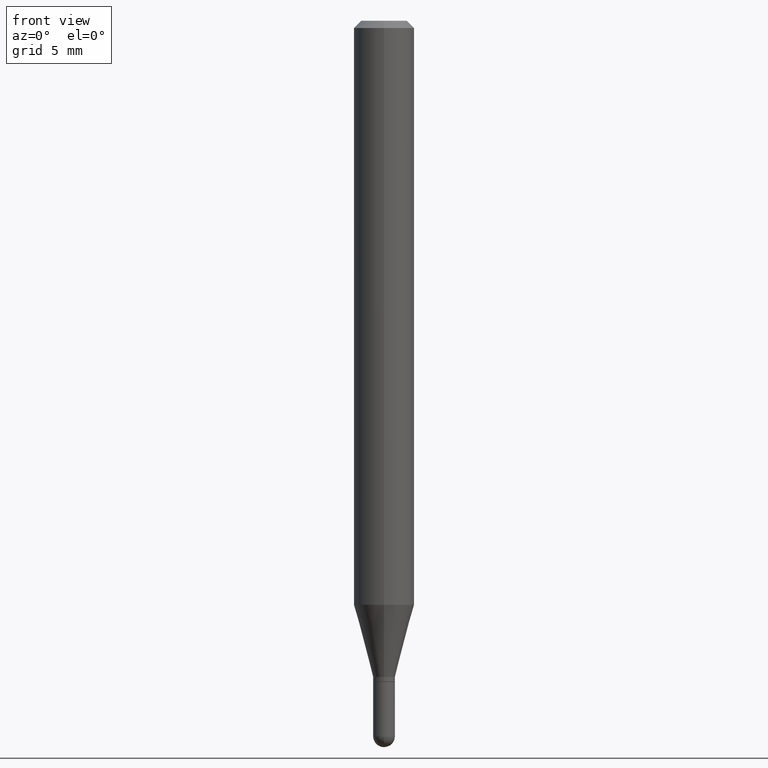
[diagram: clean part render]
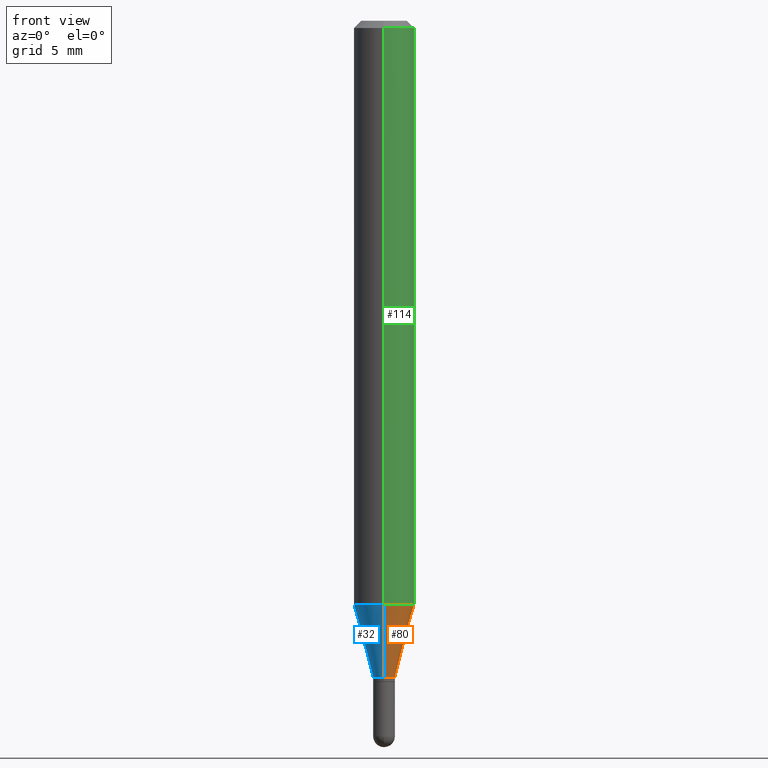
[diagram: same view with three faces highlighted in distinct colors, each labeled with its STEP entity id]
A machine part, front view with three faces highlighted in distinct colors.
Their STEP definitions:

[orange] entity #80 — the highlighted conical surface has half-angle 15 deg.
#6 = DIRECTION ( 'NONE',  ( -6.982962677686265922E-15, -1.000000000000000000, 4.370956789862821150E-15 ) ) ;
#9 = ORIENTED_EDGE ( 'NONE', *, *, #252, .T. ) ;
#54 = VERTEX_POINT ( 'NONE', #355 ) ;
#61 = CARTESIAN_POINT ( 'NONE',  ( -1.571166602479072427E-16, -0.02250000000000464823, -1.355000000000000204 ) ) ;
#67 = LINE ( 'NONE', #215, #127 ) ;
#80 = ADVANCED_FACE ( 'NONE', ( #236 ), #354, .T. ) ;
#87 = VERTEX_POINT ( 'NONE', #310 ) ;
#124 = DIRECTION ( 'NONE',  ( -2.445456213792252692E-29, 3.491499371866469900E-15, 1.000000000000000000 ) ) ;
#127 = VECTOR ( 'NONE', #181, 39.37007874015748143 ) ;
#128 = DIRECTION ( 'NONE',  ( -2.445456213792252692E-29, 3.491499371866469900E-15, 1.000000000000000000 ) ) ;
#169 = CARTESIAN_POINT ( 'NONE',  ( 3.313593169688502926E-29, -4.730981648879067221E-15, -1.355000000000000204 ) ) ;
#175 = LINE ( 'NONE', #183, #379 ) ;
#181 = DIRECTION ( 'NONE',  ( 1.839019923739599921E-15, 0.2588190451025249028, 0.9659258262890670910 ) ) ;
#183 = CARTESIAN_POINT ( 'NONE',  ( -1.571166602479072427E-16, -0.02250000000000464823, -1.355000000000000204 ) ) ;
#193 = CIRCLE ( 'NONE', #233, 0.02249999999999991937 ) ;
#215 = CARTESIAN_POINT ( 'NONE',  ( 1.598721155460550764E-16, 0.02249999999999518704, -1.355000000000000204 ) ) ;
#233 = AXIS2_PLACEMENT_3D ( 'NONE', #169, #128, #439 ) ;
#236 = FACE_OUTER_BOUND ( 'NONE', #436, .T. ) ;
#252 = EDGE_CURVE ( 'NONE', #460, #54, #193, .T. ) ;
#254 = DIRECTION ( 'NONE',  ( -1.807323732225329745E-15, -0.2588190451025181305, 0.9659258262890689783 ) ) ;
#277 = CARTESIAN_POINT ( 'NONE',  ( 3.313593169688502926E-29, -4.730981648879067221E-15, -1.355000000000000204 ) ) ;
#278 = VERTEX_POINT ( 'NONE', #327 ) ;
#284 = ORIENTED_EDGE ( 'NONE', *, *, #484, .T. ) ;
#303 = EDGE_CURVE ( 'NONE', #278, #87, #363, .T. ) ;
#310 = CARTESIAN_POINT ( 'NONE',  ( 4.440892098500918040E-16, 0.06249999999999577421, -1.205717967697245596 ) ) ;
#327 = CARTESIAN_POINT ( 'NONE',  ( -4.364351673553622350E-16, -0.06250000000000421885, -1.205717967697244930 ) ) ;
#332 = AXIS2_PLACEMENT_3D ( 'NONE', #333, #124, #6 ) ;
#333 = CARTESIAN_POINT ( 'NONE',  ( 2.948530496186194822E-29, -4.209763526863048217E-15, -1.205717967697245152 ) ) ;
#338 = AXIS2_PLACEMENT_3D ( 'NONE', #277, #352, #434 ) ;
#352 = DIRECTION ( 'NONE',  ( -2.445456213792252692E-29, 3.491499371866469900E-15, 1.000000000000000000 ) ) ;
#354 = CONICAL_SURFACE ( 'NONE', #338, 0.02249999999999991937, 0.2617993877991502405 ) ;
#355 = CARTESIAN_POINT ( 'NONE',  ( 3.019806626980737607E-16, 0.02249999999999519398, -1.355000000000000204 ) ) ;
#363 = CIRCLE ( 'NONE', #332, 0.06250000000000000000 ) ;
#379 = VECTOR ( 'NONE', #254, 39.37007874015748143 ) ;
#396 = EDGE_CURVE ( 'NONE', #460, #278, #175, .T. ) ;
#434 = DIRECTION ( 'NONE',  ( -6.982962677686265133E-15, -1.000000000000000000, 0.000000000000000000 ) ) ;
#436 = EDGE_LOOP ( 'NONE', ( #9, #284, #499, #490 ) ) ;
#439 = DIRECTION ( 'NONE',  ( -6.982962677686265133E-15, -1.000000000000000000, 0.000000000000000000 ) ) ;
#460 = VERTEX_POINT ( 'NONE', #61 ) ;
#484 = EDGE_CURVE ( 'NONE', #54, #87, #67, .T. ) ;
#490 = ORIENTED_EDGE ( 'NONE', *, *, #396, .F. ) ;
#499 = ORIENTED_EDGE ( 'NONE', *, *, #303, .F. ) ;

[blue] entity #32 — the highlighted conical surface has half-angle 15 deg.
#32 = ADVANCED_FACE ( 'NONE', ( #313 ), #501, .T. ) ;
#54 = VERTEX_POINT ( 'NONE', #355 ) ;
#58 = DIRECTION ( 'NONE',  ( -6.982962677686265133E-15, -1.000000000000000000, 0.000000000000000000 ) ) ;
#61 = CARTESIAN_POINT ( 'NONE',  ( -1.571166602479072427E-16, -0.02250000000000464823, -1.355000000000000204 ) ) ;
#67 = LINE ( 'NONE', #215, #127 ) ;
#73 = DIRECTION ( 'NONE',  ( -2.445456213792252692E-29, 3.491499371866469900E-15, 1.000000000000000000 ) ) ;
#87 = VERTEX_POINT ( 'NONE', #310 ) ;
#88 = CARTESIAN_POINT ( 'NONE',  ( 3.313593169688502926E-29, -4.730981648879067221E-15, -1.355000000000000204 ) ) ;
#103 = AXIS2_PLACEMENT_3D ( 'NONE', #88, #289, #58 ) ;
#120 = CARTESIAN_POINT ( 'NONE',  ( 3.313593169688502926E-29, -4.730981648879067221E-15, -1.355000000000000204 ) ) ;
#127 = VECTOR ( 'NONE', #181, 39.37007874015748143 ) ;
#151 = DIRECTION ( 'NONE',  ( -6.982962677686265133E-15, -1.000000000000000000, 0.000000000000000000 ) ) ;
#159 = ORIENTED_EDGE ( 'NONE', *, *, #396, .T. ) ;
#175 = LINE ( 'NONE', #183, #379 ) ;
#181 = DIRECTION ( 'NONE',  ( 1.839019923739599921E-15, 0.2588190451025249028, 0.9659258262890670910 ) ) ;
#183 = CARTESIAN_POINT ( 'NONE',  ( -1.571166602479072427E-16, -0.02250000000000464823, -1.355000000000000204 ) ) ;
#197 = EDGE_CURVE ( 'NONE', #87, #278, #451, .T. ) ;
#203 = CIRCLE ( 'NONE', #103, 0.02249999999999991937 ) ;
#206 = ORIENTED_EDGE ( 'NONE', *, *, #217, .T. ) ;
#215 = CARTESIAN_POINT ( 'NONE',  ( 1.598721155460550764E-16, 0.02249999999999518704, -1.355000000000000204 ) ) ;
#217 = EDGE_CURVE ( 'NONE', #54, #460, #203, .T. ) ;
#225 = AXIS2_PLACEMENT_3D ( 'NONE', #324, #489, #335 ) ;
#254 = DIRECTION ( 'NONE',  ( -1.807323732225329745E-15, -0.2588190451025181305, 0.9659258262890689783 ) ) ;
#278 = VERTEX_POINT ( 'NONE', #327 ) ;
#289 = DIRECTION ( 'NONE',  ( -2.445456213792252692E-29, 3.491499371866469900E-15, 1.000000000000000000 ) ) ;
#290 = EDGE_LOOP ( 'NONE', ( #365, #206, #159, #407 ) ) ;
#310 = CARTESIAN_POINT ( 'NONE',  ( 4.440892098500918040E-16, 0.06249999999999577421, -1.205717967697245596 ) ) ;
#313 = FACE_OUTER_BOUND ( 'NONE', #290, .T. ) ;
#324 = CARTESIAN_POINT ( 'NONE',  ( 2.948530496186194822E-29, -4.209763526863048217E-15, -1.205717967697245152 ) ) ;
#327 = CARTESIAN_POINT ( 'NONE',  ( -4.364351673553622350E-16, -0.06250000000000421885, -1.205717967697244930 ) ) ;
#335 = DIRECTION ( 'NONE',  ( -6.982962677686265922E-15, -1.000000000000000000, 4.370956789862821150E-15 ) ) ;
#355 = CARTESIAN_POINT ( 'NONE',  ( 3.019806626980737607E-16, 0.02249999999999519398, -1.355000000000000204 ) ) ;
#362 = AXIS2_PLACEMENT_3D ( 'NONE', #120, #73, #151 ) ;
#365 = ORIENTED_EDGE ( 'NONE', *, *, #484, .F. ) ;
#379 = VECTOR ( 'NONE', #254, 39.37007874015748143 ) ;
#396 = EDGE_CURVE ( 'NONE', #460, #278, #175, .T. ) ;
#407 = ORIENTED_EDGE ( 'NONE', *, *, #197, .F. ) ;
#451 = CIRCLE ( 'NONE', #225, 0.06250000000000000000 ) ;
#460 = VERTEX_POINT ( 'NONE', #61 ) ;
#484 = EDGE_CURVE ( 'NONE', #54, #87, #67, .T. ) ;
#489 = DIRECTION ( 'NONE',  ( -2.445456213792252692E-29, 3.491499371866469900E-15, 1.000000000000000000 ) ) ;
#501 = CONICAL_SURFACE ( 'NONE', #362, 0.02249999999999991937, 0.2617993877991502405 ) ;

[green] entity #114 — the highlighted cylindrical surface (edge-blend (fillet) strip) has radius 1.5875 mm, axis along (-0, 0, 1).
#6 = DIRECTION ( 'NONE',  ( -6.982962677686265922E-15, -1.000000000000000000, 4.370956789862821150E-15 ) ) ;
#7 = AXIS2_PLACEMENT_3D ( 'NONE', #361, #400, #8 ) ;
#8 = DIRECTION ( 'NONE',  ( -6.982962677686265922E-15, -1.000000000000000000, 3.483106191921935554E-15 ) ) ;
#46 = CARTESIAN_POINT ( 'NONE',  ( 4.440892098500625669E-16, 0.06250000000000000000, -2.182187107416543441E-16 ) ) ;
#63 = DIRECTION ( 'NONE',  ( -2.445456213792252412E-29, 3.491499371866469505E-15, 1.000000000000000000 ) ) ;
#83 = CYLINDRICAL_SURFACE ( 'NONE', #465, 0.06250000000000000000 ) ;
#87 = VERTEX_POINT ( 'NONE', #310 ) ;
#113 = DIRECTION ( 'NONE',  ( -2.445456213792252692E-29, 3.491499371866469900E-15, 1.000000000000000000 ) ) ;
#114 = ADVANCED_FACE ( 'NONE', ( #232 ), #83, .T. ) ;
#123 = ORIENTED_EDGE ( 'NONE', *, *, #303, .T. ) ;
#124 = DIRECTION ( 'NONE',  ( -2.445456213792252692E-29, 3.491499371866469900E-15, 1.000000000000000000 ) ) ;
#129 = EDGE_LOOP ( 'NONE', ( #123, #374, #263, #301 ) ) ;
#156 = CARTESIAN_POINT ( 'NONE',  ( 0.000000000000000000, 0.000000000000000000, 0.000000000000000000 ) ) ;
#172 = LINE ( 'NONE', #46, #312 ) ;
#200 = EDGE_CURVE ( 'NONE', #87, #507, #172, .T. ) ;
#218 = LINE ( 'NONE', #384, #296 ) ;
#232 = FACE_OUTER_BOUND ( 'NONE', #129, .T. ) ;
#263 = ORIENTED_EDGE ( 'NONE', *, *, #291, .F. ) ;
#266 = DIRECTION ( 'NONE',  ( -6.982962677686265922E-15, -1.000000000000000000, 3.491499371866469505E-15 ) ) ;
#273 = CARTESIAN_POINT ( 'NONE',  ( 4.440892098500922971E-16, 0.06249999999999995143, -0.01500000000000022669 ) ) ;
#278 = VERTEX_POINT ( 'NONE', #327 ) ;
#291 = EDGE_CURVE ( 'NONE', #450, #507, #305, .T. ) ;
#296 = VECTOR ( 'NONE', #63, 39.37007874015748143 ) ;
#301 = ORIENTED_EDGE ( 'NONE', *, *, #348, .F. ) ;
#303 = EDGE_CURVE ( 'NONE', #278, #87, #363, .T. ) ;
#305 = CIRCLE ( 'NONE', #7, 0.06250000000000000000 ) ;
#310 = CARTESIAN_POINT ( 'NONE',  ( 4.440892098500918040E-16, 0.06249999999999577421, -1.205717967697245596 ) ) ;
#312 = VECTOR ( 'NONE', #398, 39.37007874015748143 ) ;
#327 = CARTESIAN_POINT ( 'NONE',  ( -4.364351673553622350E-16, -0.06250000000000421885, -1.205717967697244930 ) ) ;
#332 = AXIS2_PLACEMENT_3D ( 'NONE', #333, #124, #6 ) ;
#333 = CARTESIAN_POINT ( 'NONE',  ( 2.948530496186194822E-29, -4.209763526863048217E-15, -1.205717967697245152 ) ) ;
#348 = EDGE_CURVE ( 'NONE', #278, #450, #218, .T. ) ;
#361 = CARTESIAN_POINT ( 'NONE',  ( 3.668184320688381455E-31, -5.237249057799708128E-17, -0.01500000000000000812 ) ) ;
#363 = CIRCLE ( 'NONE', #332, 0.06250000000000000000 ) ;
#374 = ORIENTED_EDGE ( 'NONE', *, *, #200, .T. ) ;
#381 = CARTESIAN_POINT ( 'NONE',  ( -4.364351673553912750E-16, -0.06250000000000005551, -0.01499999999999979128 ) ) ;
#384 = CARTESIAN_POINT ( 'NONE',  ( -4.364351673553916201E-16, -0.06250000000000000000, 2.182187107416543441E-16 ) ) ;
#398 = DIRECTION ( 'NONE',  ( -2.445456213792252412E-29, 3.491499371866469505E-15, 1.000000000000000000 ) ) ;
#400 = DIRECTION ( 'NONE',  ( -2.445456213792252692E-29, 3.491499371866469900E-15, 1.000000000000000000 ) ) ;
#450 = VERTEX_POINT ( 'NONE', #381 ) ;
#465 = AXIS2_PLACEMENT_3D ( 'NONE', #156, #113, #266 ) ;
#507 = VERTEX_POINT ( 'NONE', #273 ) ;